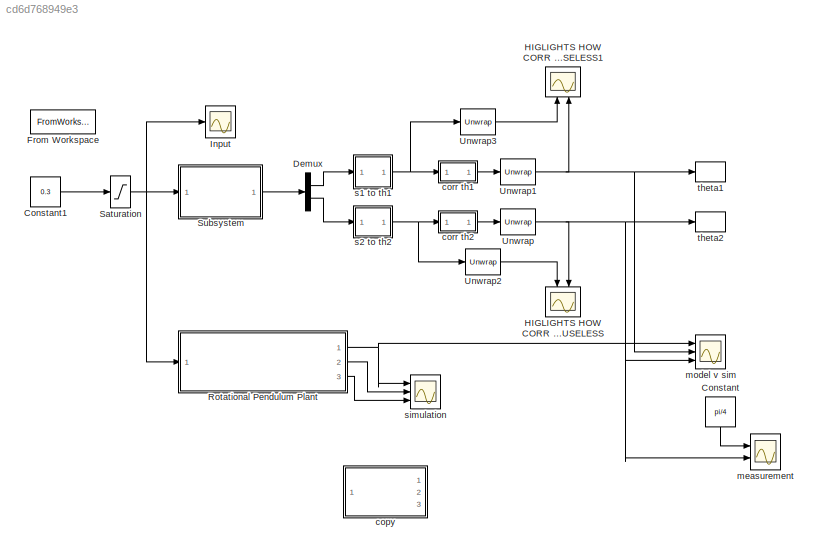
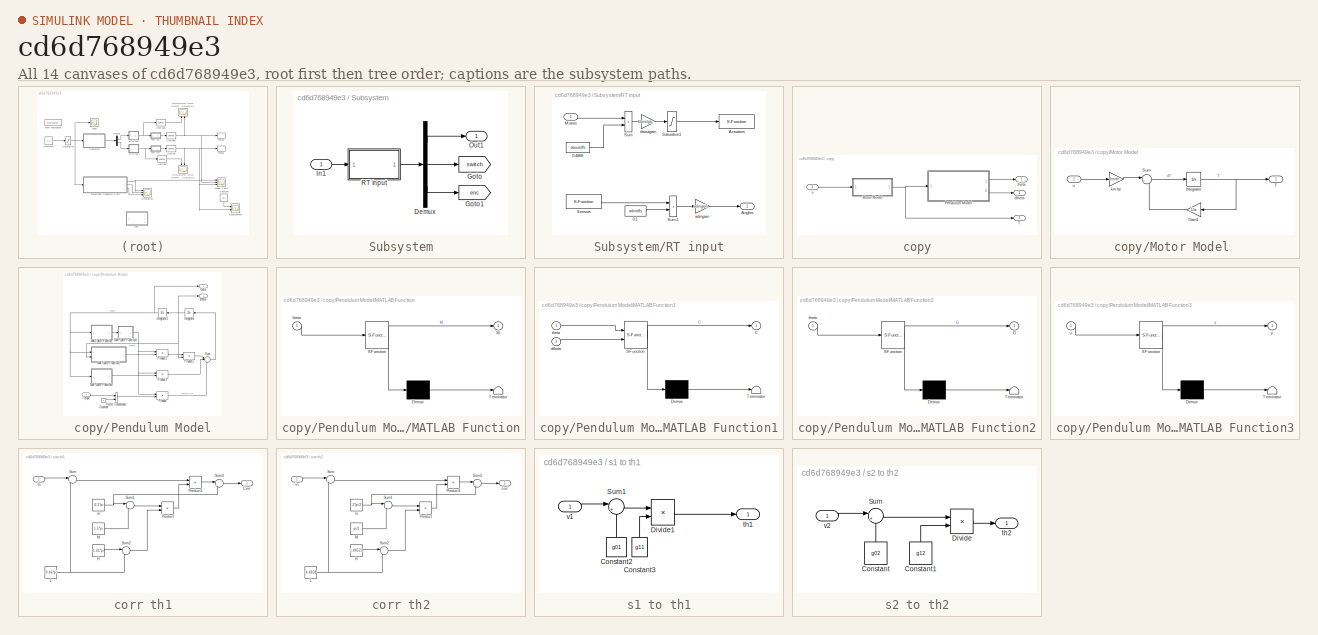
[diagram: thumbnail index - all 14 canvases of the model, root first then tree order]
MODEL slx_cd6d768949e3
KIND model
CONFIG AbsTol = auto
CONFIG EnableMultiTasking = on
CONFIG FixedStep = auto
CONFIG MaxStep = auto
CONFIG MinStep = auto
CONFIG RelTol = 1e-3
CONFIG SampleTimeConstraint = Unconstrained
CONFIG SolverName = ode45
CONFIG StartTime = 0.0
CONFIG StopTime = 10
BLOCK [Constant] Constant
  NameLocation = left
  Value = pi/4
BLOCK [Constant] Constant1
  Value = 0.3
BLOCK [Demux] Demux
  Outputs = 2
  Ports = [1, 2]
BLOCK [FromWorkspace] From Workspace
  Commented = on
  VariableName = simin
BLOCK [Scope] HIGLIGHTS HOW CORR IS USELESS
  Floating = off
  NameLocation = left
  NumInputPorts = 2
  Ports = [2]
  ScopeSpecificationString = Simulink.scopes.TimeScopeBlockCfg('CurrentConfiguration', extmgr.ConfigurationSet(extmgr.Configuration('Core','General UI',true),extmgr.Configuration('Core','Source UI',true),extmgr.Configuration('Sources','WiredSimulink',true,'DataLoggingVariableName','ScopeData1'),extmgr.Configuration('Visuals','Time Domain',true,'SerializedDisplays',{struct('MinYLimReal','-2.19171','MaxYLimReal','3.93387','YLab...<+1402ch>
BLOCK [Scope] HIGLIGHTS HOW CORR IS USELESS1
  Floating = off
  NameLocation = right
  NumInputPorts = 2
  Ports = [2]
  ScopeSpecificationString = Simulink.scopes.TimeScopeBlockCfg('CurrentConfiguration', extmgr.ConfigurationSet(extmgr.Configuration('Core','General UI',true),extmgr.Configuration('Core','Source UI',true),extmgr.Configuration('Sources','WiredSimulink',true,'DataLoggingVariableName','ScopeData1'),extmgr.Configuration('Visuals','Time Domain',true,'SerializedDisplays',{struct('MinYLimReal','-2.80339','MaxYLimReal','24.8695','YLab...<+1430ch>
BLOCK [Scope] Input
  Floating = off
  NumInputPorts = 1
  Ports = [1]
  ScopeSpecificationString = Simulink.scopes.TimeScopeBlockCfg('CurrentConfiguration', extmgr.ConfigurationSet(extmgr.Configuration('Core','General UI',true),extmgr.Configuration('Core','Source UI',true),extmgr.Configuration('Sources','WiredSimulink',true,'DataLoggingVariableName','ScopeData2'),extmgr.Configuration('Visuals','Time Domain',true,'SerializedDisplays',{struct('MinYLimReal','-1.00000','MaxYLimReal','1.00000','YLab...<+1369ch>
BLOCK [ModelReference] Rotational Pendulum Plant
  ModelNameDialog = Non_linear_model.slx
  ModelReferenceVersion = 3.13
  Ports = [1, 3]
BLOCK [Saturate] Saturation
  LowerLimit = -1
  UpperLimit = 1
BLOCK [SubSystem] Subsystem
  Ports = [1, 1]
  RequestExecContextInheritance = off
BLOCK [Demux] Subsystem/Demux
  Outputs = [2 4 1]
  Ports = [1, 3]
BLOCK [Goto] Subsystem/Goto
  GotoTag = switch
  TagVisibility = global
BLOCK [Goto] Subsystem/Goto1
  GotoTag = enc
  TagVisibility = global
BLOCK [Inport] Subsystem/In1
BLOCK [Outport] Subsystem/Out1
BLOCK [SubSystem] Subsystem/RT input
  Ports = [1, 1]
  RequestExecContextInheritance = off
BLOCK [Constant] Subsystem/RT input/0.1
  Value = adinoffs
BLOCK [Constant] Subsystem/RT input/0.4868
  Value = daoutoffs
BLOCK [S-Function] Subsystem/RT input/Actuators
  EnableBusSupport = off
  FunctionName = sfusbout
  Parameters = Ts, fugihandle
  Ports = [1]
  SFcnIsStateOwnerBlock = off
  SFunctionDeploymentMode = off
BLOCK [Outport] Subsystem/RT input/Angles
BLOCK [Inport] Subsystem/RT input/Motors
BLOCK [Saturate] Subsystem/RT input/Saturation1
  LowerLimit = -10
  UpperLimit = 10
BLOCK [S-Function] Subsystem/RT input/Sensors
  EnableBusSupport = off
  FunctionName = sfusbin
  Parameters = Ts, fugihandle, channels
  Ports = [0, 1]
  SFcnIsStateOwnerBlock = off
  SFunctionDeploymentMode = off
BLOCK [Sum] Subsystem/RT input/Sum
  IconShape = rectangular
  InputSameDT = on
  OutDataTypeStr = Inherit: Same as first input
  Ports = [2, 1]
  SaturateOnIntegerOverflow = on
BLOCK [Sum] Subsystem/RT input/Sum1
  IconShape = rectangular
  InputSameDT = on
  OutDataTypeStr = Inherit: Same as first input
  Ports = [2, 1]
  SaturateOnIntegerOverflow = on
BLOCK [Gain] Subsystem/RT input/adingain
  Gain = adingain
  OutDataTypeStr = Inherit: Same as input
  ParamDataTypeStr = Inherit: Same as input
  SaturateOnIntegerOverflow = on
BLOCK [Gain] Subsystem/RT input/daoutgain
  Gain = daoutgain
  OutDataTypeStr = Inherit: Same as input
  ParamDataTypeStr = Inherit: Same as input
  SaturateOnIntegerOverflow = on
BLOCK [Reference] Unwrap  REF=dspsigops/Unwrap
  Ports = [1, 1]
  SourceBlock = dspsigops/Unwrap
  SourceProductBaseCode = DS
  SourceType = Unwrap
  UserDataPersistent = on
BLOCK [Reference] Unwrap1  REF=dspsigops/Unwrap
  Ports = [1, 1]
  SourceBlock = dspsigops/Unwrap
  SourceProductBaseCode = DS
  SourceType = Unwrap
  UserDataPersistent = on
BLOCK [Reference] Unwrap2  REF=dspsigops/Unwrap
  Ports = [1, 1]
  SourceBlock = dspsigops/Unwrap
  SourceProductBaseCode = DS
  SourceType = Unwrap
  UserDataPersistent = on
BLOCK [Reference] Unwrap3  REF=dspsigops/Unwrap
  Ports = [1, 1]
  SourceBlock = dspsigops/Unwrap
  SourceProductBaseCode = DS
  SourceType = Unwrap
  UserDataPersistent = on
BLOCK [SubSystem] copy
  Commented = on
  NameLocation = top
  Ports = [1, 3]
  RequestExecContextInheritance = off
BLOCK [SubSystem] copy/Motor Model 
  Ports = [1, 1]
  RequestExecContextInheritance = off
BLOCK [Gain] copy/Motor Model /Gain1
  Gain = 1/te
  NameLocation = top
BLOCK [Integrator] copy/Motor Model /Integrator
  Ports = [1, 1]
BLOCK [Sum] copy/Motor Model /Sum
  Inputs = |+-
  Ports = [2, 1]
BLOCK [Outport] copy/Motor Model /T
BLOCK [Gain] copy/Motor Model /km//te 
  Gain = km/te
BLOCK [Inport] copy/Motor Model /u
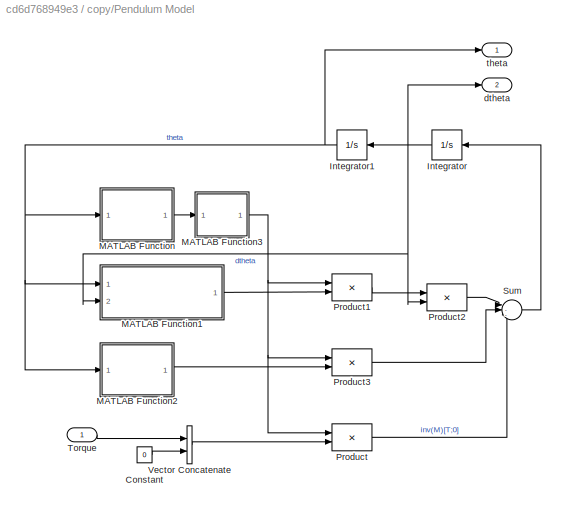
BLOCK [SubSystem] copy/Pendulum Model
  Ports = [1, 2]
  RequestExecContextInheritance = off
BLOCK [Constant] copy/Pendulum Model/Constant
  NameLocation = top
  Value = 0
BLOCK [Integrator] copy/Pendulum Model/Integrator
  InitialCondition = [thetadot0(1);thetadot0(2)]
  NameLocation = top
  Ports = [1, 1]
BLOCK [Integrator] copy/Pendulum Model/Integrator1
  InitialCondition = [theta0(1);theta0(2)]
  NameLocation = top
  Ports = [1, 1]
BLOCK [SubSystem] copy/Pendulum Model/MATLAB Function
  ErrorFcn = Stateflow.Translate.translate
  PermitHierarchicalResolution = ExplicitOnly
  Ports = [1, 1]
  RequestExecContextInheritance = off
  SFBlockType = MATLAB Function
  TreatAsAtomicUnit = on
BLOCK [Demux] copy/Pendulum Model/MATLAB Function/ Demux 
  Outputs = 1
  Ports = [1, 1]
BLOCK [S-Function] copy/Pendulum Model/MATLAB Function/ SFunction 
  EnableBusSupport = on
  FunctionName = sf_sfun
  Parameters = P1,P2,P3
  PortCounts = [1 2]
  Ports = [1, 2]
  SFcnIsStateOwnerBlock = off
  SFunctionDeploymentMode = off
  Tag = Stateflow S-Function 2
BLOCK [Terminator] copy/Pendulum Model/MATLAB Function/ Terminator 
BLOCK [Outport] copy/Pendulum Model/MATLAB Function/M
BLOCK [Inport] copy/Pendulum Model/MATLAB Function/theta
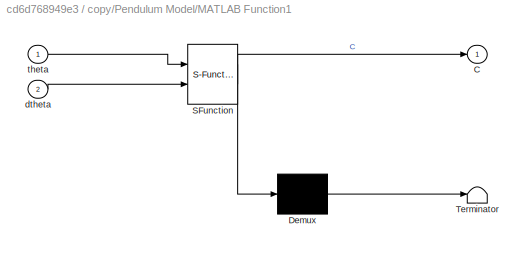
BLOCK [SubSystem] copy/Pendulum Model/MATLAB Function1
  ErrorFcn = Stateflow.Translate.translate
  PermitHierarchicalResolution = ExplicitOnly
  Ports = [2, 1]
  RequestExecContextInheritance = off
  SFBlockType = MATLAB Function
  TreatAsAtomicUnit = on
BLOCK [Demux] copy/Pendulum Model/MATLAB Function1/ Demux 
  Outputs = 1
  Ports = [1, 1]
BLOCK [S-Function] copy/Pendulum Model/MATLAB Function1/ SFunction 
  EnableBusSupport = on
  FunctionName = sf_sfun
  Parameters = P3,b1,b2
  PortCounts = [2 2]
  Ports = [2, 2]
  SFcnIsStateOwnerBlock = off
  SFunctionDeploymentMode = off
  Tag = Stateflow S-Function 1
BLOCK [Terminator] copy/Pendulum Model/MATLAB Function1/ Terminator 
BLOCK [Outport] copy/Pendulum Model/MATLAB Function1/C
BLOCK [Inport] copy/Pendulum Model/MATLAB Function1/dtheta
  Port = 2
BLOCK [Inport] copy/Pendulum Model/MATLAB Function1/theta
BLOCK [SubSystem] copy/Pendulum Model/MATLAB Function2
  ErrorFcn = Stateflow.Translate.translate
  PermitHierarchicalResolution = ExplicitOnly
  Ports = [1, 1]
  RequestExecContextInheritance = off
  SFBlockType = MATLAB Function
  TreatAsAtomicUnit = on
BLOCK [Demux] copy/Pendulum Model/MATLAB Function2/ Demux 
  Outputs = 1
  Ports = [1, 1]
BLOCK [S-Function] copy/Pendulum Model/MATLAB Function2/ SFunction 
  EnableBusSupport = on
  FunctionName = sf_sfun
  Parameters = g1,g2
  PortCounts = [1 2]
  Ports = [1, 2]
  SFcnIsStateOwnerBlock = off
  SFunctionDeploymentMode = off
  Tag = Stateflow S-Function 3
BLOCK [Terminator] copy/Pendulum Model/MATLAB Function2/ Terminator 
BLOCK [Outport] copy/Pendulum Model/MATLAB Function2/G
BLOCK [Inport] copy/Pendulum Model/MATLAB Function2/theta
BLOCK [SubSystem] copy/Pendulum Model/MATLAB Function3
  ErrorFcn = Stateflow.Translate.translate
  PermitHierarchicalResolution = ExplicitOnly
  Ports = [1, 1]
  RequestExecContextInheritance = off
  SFBlockType = MATLAB Function
  TreatAsAtomicUnit = on
BLOCK [Demux] copy/Pendulum Model/MATLAB Function3/ Demux 
  Outputs = 1
  Ports = [1, 1]
BLOCK [S-Function] copy/Pendulum Model/MATLAB Function3/ SFunction 
  EnableBusSupport = on
  FunctionName = sf_sfun
  PortCounts = [1 2]
  Ports = [1, 2]
  SFcnIsStateOwnerBlock = off
  SFunctionDeploymentMode = off
  Tag = Stateflow S-Function 4
BLOCK [Terminator] copy/Pendulum Model/MATLAB Function3/ Terminator 
BLOCK [Inport] copy/Pendulum Model/MATLAB Function3/u
BLOCK [Outport] copy/Pendulum Model/MATLAB Function3/y
BLOCK [Product] copy/Pendulum Model/Product
  Multiplication = Matrix(*)
  Ports = [2, 1]
BLOCK [Product] copy/Pendulum Model/Product1
  Multiplication = Matrix(*)
  Ports = [2, 1]
BLOCK [Product] copy/Pendulum Model/Product2
  Multiplication = Matrix(*)
  Ports = [2, 1]
BLOCK [Product] copy/Pendulum Model/Product3
  Multiplication = Matrix(*)
  Ports = [2, 1]
BLOCK [Sum] copy/Pendulum Model/Sum
  Inputs = |--+
  Ports = [3, 1]
BLOCK [Inport] copy/Pendulum Model/Torque
BLOCK [Concatenate] copy/Pendulum Model/Vector Concatenate
  Ports = [2, 1]
BLOCK [Outport] copy/Pendulum Model/dtheta
  Port = 2
BLOCK [Outport] copy/Pendulum Model/theta
BLOCK [Outport] copy/T
  Port = 3
BLOCK [Outport] copy/dtheta
  Port = 2
BLOCK [Outport] copy/theta
BLOCK [Inport] copy/u
BLOCK [SubSystem] corr th1
  Ports = [1, 1]
  RequestExecContextInheritance = off
BLOCK [Outport] corr th1/Corr
BLOCK [Constant] corr th1/H
  Value = 1.41*pi
BLOCK [Inport] corr th1/In
BLOCK [Constant] corr th1/L
  Value = -0.46*pi
BLOCK [Constant] corr th1/M
  Value = 1.5*pi
BLOCK [Product] corr th1/Product
  Inputs = */
  Ports = [2, 1]
BLOCK [Product] corr th1/Product1
  Ports = [2, 1]
BLOCK [Sum] corr th1/Sum
  Inputs = |+-
  Ports = [2, 1]
BLOCK [Sum] corr th1/Sum1
  Inputs = |-+
  Ports = [2, 1]
BLOCK [Sum] corr th1/Sum2
  Inputs = |+-
  Ports = [2, 1]
BLOCK [Sum] corr th1/Sum3
  Inputs = |++
  Ports = [2, 1]
BLOCK [Constant] corr th1/m
  Value = -0.5*pi
BLOCK [SubSystem] corr th2
  Ports = [1, 1]
  RequestExecContextInheritance = off
BLOCK [Constant] corr th2/H
  Value = 1.48525
BLOCK [Constant] corr th2/L
  Value = -4.4838
BLOCK [Constant] corr th2/M
  Value = pi/2
BLOCK [Product] corr th2/Product
  Inputs = */
  Ports = [2, 1]
BLOCK [Product] corr th2/Product1
  Ports = [2, 1]
BLOCK [Sum] corr th2/Sum
  Inputs = |+-
  Ports = [2, 1]
BLOCK [Sum] corr th2/Sum1
  Inputs = |-+
  Ports = [2, 1]
BLOCK [Sum] corr th2/Sum2
  Inputs = |+-
  Ports = [2, 1]
BLOCK [Sum] corr th2/Sum3
  Inputs = |++
  Ports = [2, 1]
BLOCK [Outport] corr th2/corr
BLOCK [Inport] corr th2/in
BLOCK [Constant] corr th2/m
  Value = -3*pi/2
BLOCK [Scope] measurement
  Floating = off
  NumInputPorts = 2
  Ports = [2]
  ScopeSpecificationString = Simulink.scopes.TimeScopeBlockCfg('CurrentConfiguration', extmgr.ConfigurationSet(extmgr.Configuration('Core','General UI',true),extmgr.Configuration('Core','Source UI',true),extmgr.Configuration('Sources','WiredSimulink',true,'DataLoggingVariableName','measurement','DataLogging',true,'DataLoggingSaveFormat','StructureWithTime'),extmgr.Configuration('Visuals','Time Domain',true,'SerializedDisplays...<+1472ch>
BLOCK [Scope] model v sim
  Floating = off
  NumInputPorts = 3
  Ports = [3]
  ScopeSpecificationString = Simulink.scopes.TimeScopeBlockCfg('CurrentConfiguration', extmgr.ConfigurationSet(extmgr.Configuration('Core','General UI',true),extmgr.Configuration('Core','Source UI',true),extmgr.Configuration('Sources','WiredSimulink',true),extmgr.Configuration('Visuals','Time Domain',true,'SerializedDisplays',{struct('MinYLimReal','-2.14963','MaxYLimReal','3.90067','YLabelReal','','MinYLimMag','0.00000','MaxY...<+1435ch>
BLOCK [SubSystem] s1 to th1
  Ports = [1, 1]
  RequestExecContextInheritance = off
BLOCK [Constant] s1 to th1/Constant2
  NameLocation = right
  Value = g01
BLOCK [Constant] s1 to th1/Constant3
  NameLocation = right
  Value = g11
BLOCK [Product] s1 to th1/Divide1
  Inputs = */
  Ports = [2, 1]
BLOCK [Sum] s1 to th1/Sum1
  Inputs = |+-
  Ports = [2, 1]
BLOCK [Outport] s1 to th1/th1
BLOCK [Inport] s1 to th1/v1
BLOCK [SubSystem] s2 to th2
  Ports = [1, 1]
  RequestExecContextInheritance = off
BLOCK [Constant] s2 to th2/Constant
  NameLocation = right
  Value = g02
BLOCK [Constant] s2 to th2/Constant1
  NameLocation = right
  Value = g12
BLOCK [Product] s2 to th2/Divide
  Inputs = */
  Ports = [2, 1]
BLOCK [Sum] s2 to th2/Sum
  Inputs = |+-
  NameLocation = top
  Ports = [2, 1]
BLOCK [Outport] s2 to th2/th2
BLOCK [Inport] s2 to th2/v2
BLOCK [Scope] simulation
  Floating = off
  NumInputPorts = 3
  Ports = [3]
  ScopeSpecificationString = Simulink.scopes.TimeScopeBlockCfg('CurrentConfiguration', extmgr.ConfigurationSet(extmgr.Configuration('Core','General UI',true),extmgr.Configuration('Core','Source UI',true),extmgr.Configuration('Sources','WiredSimulink',true,'DataLoggingVariableName','ScopeData1'),extmgr.Configuration('Visuals','Time Domain',true,'SerializedDisplays',{struct('MinYLimReal','-1.92838','MaxYLimReal','3.70574','YLab...<+1479ch>
BLOCK [ToWorkspace] theta1
  FixptAsFi = on
  MaxDataPoints = inf
  Ports = [1]
  SampleTime = -1
  SaveFormat = Timeseries
  VariableName = th1
BLOCK [ToWorkspace] theta2
  FixptAsFi = on
  MaxDataPoints = inf
  Ports = [1]
  SampleTime = -1
  SaveFormat = Timeseries
  VariableName = th2
LINE Constant1:1 -> Saturation:1
LINE Constant:1 -> measurement:1
LINE Demux:1 -> s1 to th1:1
LINE Demux:2 -> s2 to th2:1
NET Rotational Pendulum Plant:1 -> model v sim:1, simulation:1
LINE Rotational Pendulum Plant:2 -> simulation:2
LINE Rotational Pendulum Plant:3 -> simulation:3
NET Saturation:1 -> Input:1, Rotational Pendulum Plant:1, Subsystem:1
LINE Subsystem/Demux:1 -> Subsystem/Out1:1
LINE Subsystem/Demux:2 -> Subsystem/Goto:1
LINE Subsystem/Demux:3 -> Subsystem/Goto1:1
LINE Subsystem/In1:1 -> Subsystem/RT input:1
LINE Subsystem/RT input/0.1:1 -> Subsystem/RT input/Sum1:2
LINE Subsystem/RT input/0.4868:1 -> Subsystem/RT input/Sum:2
LINE Subsystem/RT input/Motors:1 -> Subsystem/RT input/Sum:1
LINE Subsystem/RT input/Saturation1:1 -> Subsystem/RT input/Actuators:1
LINE Subsystem/RT input/Sensors:1 -> Subsystem/RT input/Sum1:1
LINE Subsystem/RT input/Sum1:1 -> Subsystem/RT input/adingain:1
LINE Subsystem/RT input/Sum:1 -> Subsystem/RT input/daoutgain:1
LINE Subsystem/RT input/adingain:1 -> Subsystem/RT input/Angles:1
LINE Subsystem/RT input/daoutgain:1 -> Subsystem/RT input/Saturation1:1
LINE Subsystem/RT input:1 -> Subsystem/Demux:1
LINE Subsystem:1 -> Demux:1
NET Unwrap1:1 -> HIGLIGHTS HOW CORR IS USELESS1:2, model v sim:2, theta1:1
LINE Unwrap2:1 -> HIGLIGHTS HOW CORR IS USELESS:1
LINE Unwrap3:1 -> HIGLIGHTS HOW CORR IS USELESS1:1
NET Unwrap:1 -> HIGLIGHTS HOW CORR IS USELESS:2, measurement:2, model v sim:3, theta2:1
LINE copy/Motor Model /Gain1:1 -> copy/Motor Model /Sum:2
NET copy/Motor Model /Integrator:1 -> copy/Motor Model /Gain1:1, copy/Motor Model /T:1
LINE copy/Motor Model /Sum:1 -> copy/Motor Model /Integrator:1
LINE copy/Motor Model /km//te :1 -> copy/Motor Model /Sum:1
LINE copy/Motor Model /u:1 -> copy/Motor Model /km//te :1
NET copy/Motor Model :1 -> copy/Pendulum Model:1, copy/T:1
LINE copy/Pendulum Model/Constant:1 -> copy/Pendulum Model/Vector Concatenate:2
NET copy/Pendulum Model/Integrator1:1 -> copy/Pendulum Model/MATLAB Function1:1, copy/Pendulum Model/MATLAB Function2:1, copy/Pendulum Model/MATLAB Function:1, copy/Pendulum Model/theta:1
NET copy/Pendulum Model/Integrator:1 -> copy/Pendulum Model/Integrator1:1, copy/Pendulum Model/MATLAB Function1:2, copy/Pendulum Model/Product2:2, copy/Pendulum Model/dtheta:1
LINE copy/Pendulum Model/MATLAB Function1:1 -> copy/Pendulum Model/Product1:2
LINE copy/Pendulum Model/MATLAB Function2:1 -> copy/Pendulum Model/Product3:2
NET copy/Pendulum Model/MATLAB Function3:1 -> copy/Pendulum Model/Product1:1, copy/Pendulum Model/Product3:1, copy/Pendulum Model/Product:1
LINE copy/Pendulum Model/MATLAB Function:1 -> copy/Pendulum Model/MATLAB Function3:1
LINE copy/Pendulum Model/Product1:1 -> copy/Pendulum Model/Product2:1
LINE copy/Pendulum Model/Product2:1 -> copy/Pendulum Model/Sum:1
LINE copy/Pendulum Model/Product3:1 -> copy/Pendulum Model/Sum:2
LINE copy/Pendulum Model/Product:1 -> copy/Pendulum Model/Sum:3
LINE copy/Pendulum Model/Sum:1 -> copy/Pendulum Model/Integrator:1
LINE copy/Pendulum Model/Torque:1 -> copy/Pendulum Model/Vector Concatenate:1
LINE copy/Pendulum Model/Vector Concatenate:1 -> copy/Pendulum Model/Product:2
LINE copy/Pendulum Model:1 -> copy/theta:1
LINE copy/Pendulum Model:2 -> copy/dtheta:1
LINE copy/u:1 -> copy/Motor Model :1
LINE corr th1/H:1 -> corr th1/Sum2:1
LINE corr th1/In:1 -> corr th1/Sum:1
NET corr th1/L:1 -> corr th1/Sum2:2, corr th1/Sum:2
LINE corr th1/M:1 -> corr th1/Sum1:2
LINE corr th1/Product1:1 -> corr th1/Sum3:1
LINE corr th1/Product:1 -> corr th1/Product1:2
LINE corr th1/Sum1:1 -> corr th1/Product:1
LINE corr th1/Sum2:1 -> corr th1/Product:2
LINE corr th1/Sum3:1 -> corr th1/Corr:1
LINE corr th1/Sum:1 -> corr th1/Product1:1
NET corr th1/m:1 -> corr th1/Sum1:1, corr th1/Sum3:2
LINE corr th1:1 -> Unwrap1:1
LINE corr th2/H:1 -> corr th2/Sum2:1
NET corr th2/L:1 -> corr th2/Sum2:2, corr th2/Sum:2
LINE corr th2/M:1 -> corr th2/Sum1:2
LINE corr th2/Product1:1 -> corr th2/Sum3:1
LINE corr th2/Product:1 -> corr th2/Product1:2
LINE corr th2/Sum1:1 -> corr th2/Product:1
LINE corr th2/Sum2:1 -> corr th2/Product:2
LINE corr th2/Sum3:1 -> corr th2/corr:1
LINE corr th2/Sum:1 -> corr th2/Product1:1
LINE corr th2/in:1 -> corr th2/Sum:1
NET corr th2/m:1 -> corr th2/Sum1:1, corr th2/Sum3:2
LINE corr th2:1 -> Unwrap:1
LINE s1 to th1/Constant2:1 -> s1 to th1/Sum1:2
LINE s1 to th1/Constant3:1 -> s1 to th1/Divide1:2
LINE s1 to th1/Divide1:1 -> s1 to th1/th1:1
LINE s1 to th1/Sum1:1 -> s1 to th1/Divide1:1
LINE s1 to th1/v1:1 -> s1 to th1/Sum1:1
NET s1 to th1:1 -> Unwrap3:1, corr th1:1
LINE s2 to th2/Constant1:1 -> s2 to th2/Divide:2
LINE s2 to th2/Constant:1 -> s2 to th2/Sum:2
LINE s2 to th2/Divide:1 -> s2 to th2/th2:1
LINE s2 to th2/Sum:1 -> s2 to th2/Divide:1
LINE s2 to th2/v2:1 -> s2 to th2/Sum:1
NET s2 to th2:1 -> Unwrap2:1, corr th2:1
note: NET lines group one-source signal fan-out (src -> all destinations, sorted); 1:1 wires keep LINE
CHART copy/Pendulum Model/MATLAB Function1 states=1 transitions=1
  STATE_LABEL 'eML_blk_kernel()'
  STATE_LABEL 'SCRIPT:\nfunction C = C_matrix(theta, dtheta,b1,P3, b2)\nC = [b1-P3*dtheta(2)*sin(theta(2))  -P3*(dtheta(1)+dtheta(2))*sin(theta(2));\n     P3*dtheta(1)*sin(theta(2))     b2];\n'
CHART copy/Pendulum Model/MATLAB Function states=1 transitions=1
  STATE_LABEL 'eML_blk_kernel()'
  STATE_LABEL 'SCRIPT:\nfunction M = M_matrix(theta,P1, P3, P2)\n    M = [P1+P2+2*P3*cos(theta(2)) P2+P3*cos(theta(2));\n         P2+P3*cos(theta(2))      P2];\n'
CHART copy/Pendulum Model/MATLAB Function2 states=1 transitions=1
  STATE_LABEL 'eML_blk_kernel()'
  STATE_LABEL 'SCRIPT:\nfunction G = G_matrix(theta,g2,g1)\nG = [-g1*sin(theta(1))-g2*sin(theta(1)+theta(2));\n     -g2*sin(theta(1)+theta(2))];\n'
CHART copy/Pendulum Model/MATLAB Function3 states=1 transitions=1
  STATE_LABEL 'eML_blk_kernel()'
  STATE_LABEL 'SCRIPT:\nfunction y = inverse(u)\ny = inv(u);\n'
CHART  states=0 transitions=0
CHART  states=0 transitions=0
CHART  states=0 transitions=0
CHART  states=0 transitions=0
